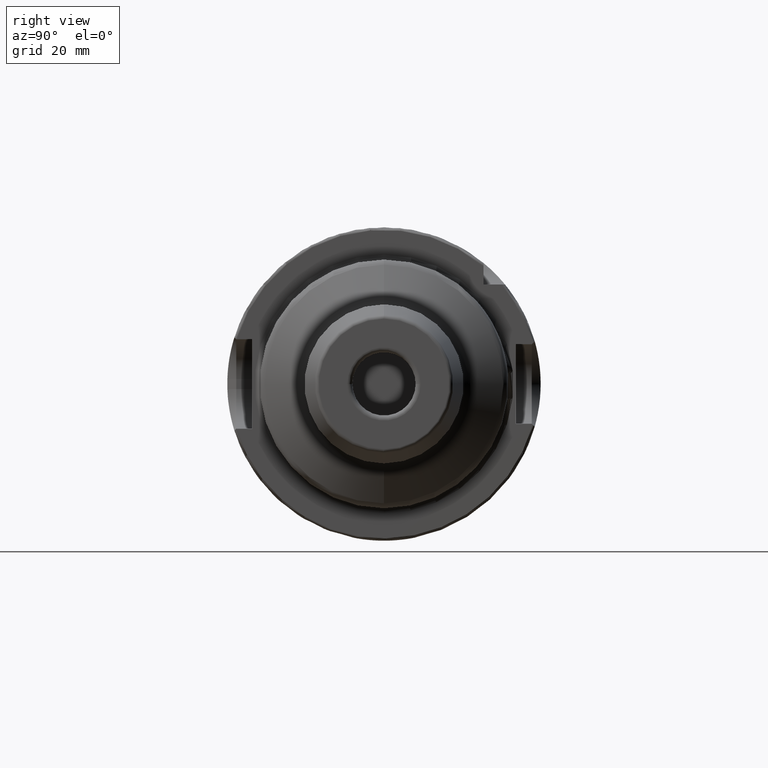
[diagram: clean part render]
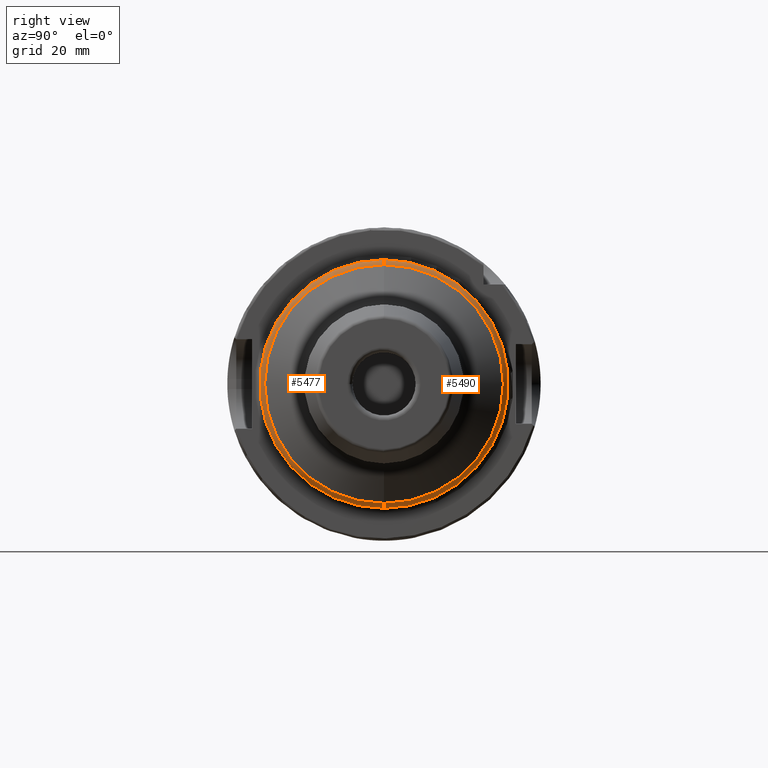
[diagram: same view with one multi-face feature highlighted, each face labeled with its STEP entity id]
A machine part, right view. The highlighted faces form ONE feature: a constant-radius fillet chain: 2 tangent blend faces with common blend radius 2 mm. The faces share edges in the B-rep.
Their STEP definitions:
[1] entity #5490 (Torus):
#2185=CARTESIAN_POINT('',(3.864914703891E1,0.E0,0.E0));
#2186=DIRECTION('',(-1.E0,0.E0,0.E0));
#2187=DIRECTION('',(0.E0,0.E0,1.E0));
#2188=AXIS2_PLACEMENT_3D('',#2185,#2186,#2187);
#2249=CARTESIAN_POINT('',(3.864914703891E1,3.933663672573E-10,-2.3E1));
#2250=DIRECTION('',(0.E0,-1.E0,-1.710288681511E-11));
#2251=DIRECTION('',(2.025046796916E-13,1.710288681511E-11,-1.E0));
#2252=AXIS2_PLACEMENT_3D('',#2249,#2250,#2251);
#2254=CARTESIAN_POINT('',(3.864914703891E1,-3.933620651431E-10,2.3E1));
#2255=DIRECTION('',(0.E0,1.E0,1.710269946498E-11));
#2256=DIRECTION('',(2.060573933704E-13,-1.710269946498E-11,1.E0));
#2257=AXIS2_PLACEMENT_3D('',#2254,#2255,#2256);
#2259=CARTESIAN_POINT('',(4.038119784648E1,0.E0,0.E0));
#2260=DIRECTION('',(-1.E0,0.E0,0.E0));
#2261=DIRECTION('',(0.E0,0.E0,1.E0));
#2262=AXIS2_PLACEMENT_3D('',#2259,#2260,#2261);
#2983=CARTESIAN_POINT('',(3.864914703891E1,0.E0,2.5E1));
#2984=CARTESIAN_POINT('',(3.864914703891E1,0.E0,-2.5E1));
#2985=VERTEX_POINT('',#2983);
#2986=VERTEX_POINT('',#2984);
#2987=CARTESIAN_POINT('',(4.038119784648E1,0.E0,2.4E1));
#2988=CARTESIAN_POINT('',(4.038119784648E1,0.E0,-2.4E1));
#2989=VERTEX_POINT('',#2987);
#2990=VERTEX_POINT('',#2988);
#5478=CARTESIAN_POINT('',(3.864914703891E1,0.E0,0.E0));
#5479=DIRECTION('',(1.E0,0.E0,0.E0));
#5480=DIRECTION('',(0.E0,-8.814214855927E-3,9.999611540537E-1));
#5481=AXIS2_PLACEMENT_3D('',#5478,#5479,#5480);
#5482=TOROIDAL_SURFACE('',#5481,2.3E1,2.E0);
#5483=ORIENTED_EDGE('',*,*,#5439,.T.);
#5484=ORIENTED_EDGE('',*,*,#5473,.T.);
#5486=ORIENTED_EDGE('',*,*,#5485,.F.);
#5487=ORIENTED_EDGE('',*,*,#5469,.F.);
#5488=EDGE_LOOP('',(#5483,#5484,#5486,#5487));
#5489=FACE_OUTER_BOUND('',#5488,.F.);
#5490=ADVANCED_FACE('',(#5489),#5482,.T.);
#2189=CIRCLE('',#2188,2.5E1);
#2253=CIRCLE('',#2252,2.E0);
#2258=CIRCLE('',#2257,2.E0);
#2263=CIRCLE('',#2262,2.4E1);
#5439=EDGE_CURVE('',#2985,#2986,#2189,.T.);
#5469=EDGE_CURVE('',#2985,#2989,#2258,.T.);
#5473=EDGE_CURVE('',#2986,#2990,#2253,.T.);
#5485=EDGE_CURVE('',#2989,#2990,#2263,.T.);
[2] entity #5477 (Torus):
#2240=CARTESIAN_POINT('',(3.864914703891E1,0.E0,0.E0));
#2241=DIRECTION('',(-1.E0,0.E0,0.E0));
#2242=DIRECTION('',(0.E0,0.E0,-1.E0));
#2243=AXIS2_PLACEMENT_3D('',#2240,#2241,#2242);
#2249=CARTESIAN_POINT('',(3.864914703891E1,3.933663672573E-10,-2.3E1));
#2250=DIRECTION('',(0.E0,-1.E0,-1.710288681511E-11));
#2251=DIRECTION('',(2.025046796916E-13,1.710288681511E-11,-1.E0));
#2252=AXIS2_PLACEMENT_3D('',#2249,#2250,#2251);
#2254=CARTESIAN_POINT('',(3.864914703891E1,-3.933620651431E-10,2.3E1));
#2255=DIRECTION('',(0.E0,1.E0,1.710269946498E-11));
#2256=DIRECTION('',(2.060573933704E-13,-1.710269946498E-11,1.E0));
#2257=AXIS2_PLACEMENT_3D('',#2254,#2255,#2256);
#2269=CARTESIAN_POINT('',(4.038119784648E1,0.E0,0.E0));
#2270=DIRECTION('',(-1.E0,0.E0,0.E0));
#2271=DIRECTION('',(0.E0,0.E0,-1.E0));
#2272=AXIS2_PLACEMENT_3D('',#2269,#2270,#2271);
#2983=CARTESIAN_POINT('',(3.864914703891E1,0.E0,2.5E1));
#2984=CARTESIAN_POINT('',(3.864914703891E1,0.E0,-2.5E1));
#2985=VERTEX_POINT('',#2983);
#2986=VERTEX_POINT('',#2984);
#2987=CARTESIAN_POINT('',(4.038119784648E1,0.E0,2.4E1));
#2988=CARTESIAN_POINT('',(4.038119784648E1,0.E0,-2.4E1));
#2989=VERTEX_POINT('',#2987);
#2990=VERTEX_POINT('',#2988);
#5463=CARTESIAN_POINT('',(3.864914703891E1,0.E0,0.E0));
#5464=DIRECTION('',(1.E0,0.E0,0.E0));
#5465=DIRECTION('',(0.E0,8.814214855927E-3,-9.999611540537E-1));
#5466=AXIS2_PLACEMENT_3D('',#5463,#5464,#5465);
#5467=TOROIDAL_SURFACE('',#5466,2.3E1,2.E0);
#5468=ORIENTED_EDGE('',*,*,#5457,.T.);
#5470=ORIENTED_EDGE('',*,*,#5469,.T.);
#5472=ORIENTED_EDGE('',*,*,#5471,.F.);
#5474=ORIENTED_EDGE('',*,*,#5473,.F.);
#5475=EDGE_LOOP('',(#5468,#5470,#5472,#5474));
#5476=FACE_OUTER_BOUND('',#5475,.F.);
#5477=ADVANCED_FACE('',(#5476),#5467,.T.);
#2244=CIRCLE('',#2243,2.5E1);
#2253=CIRCLE('',#2252,2.E0);
#2258=CIRCLE('',#2257,2.E0);
#2273=CIRCLE('',#2272,2.4E1);
#5457=EDGE_CURVE('',#2986,#2985,#2244,.T.);
#5469=EDGE_CURVE('',#2985,#2989,#2258,.T.);
#5471=EDGE_CURVE('',#2990,#2989,#2273,.T.);
#5473=EDGE_CURVE('',#2986,#2990,#2253,.T.);